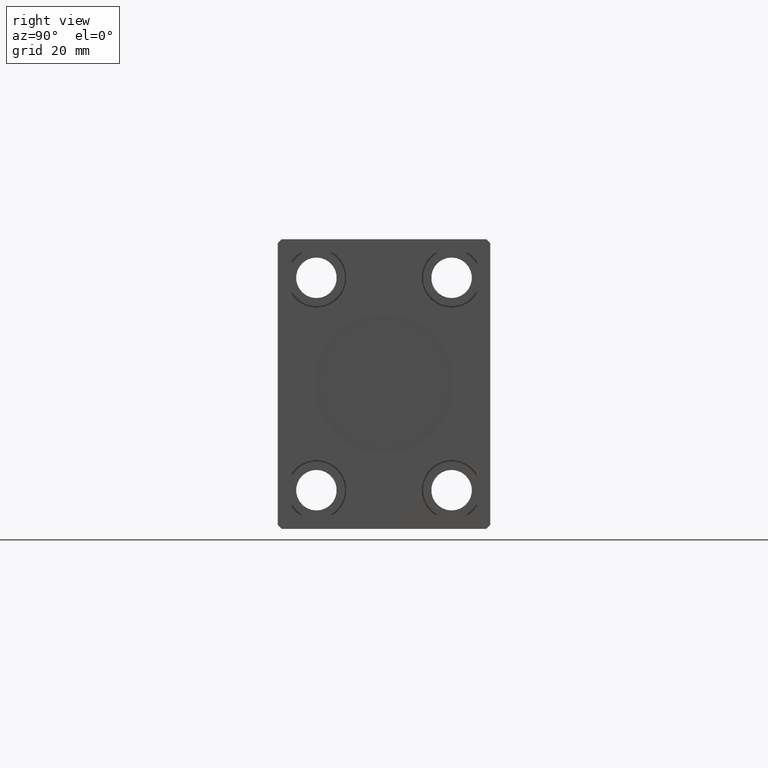
[diagram: clean part render]
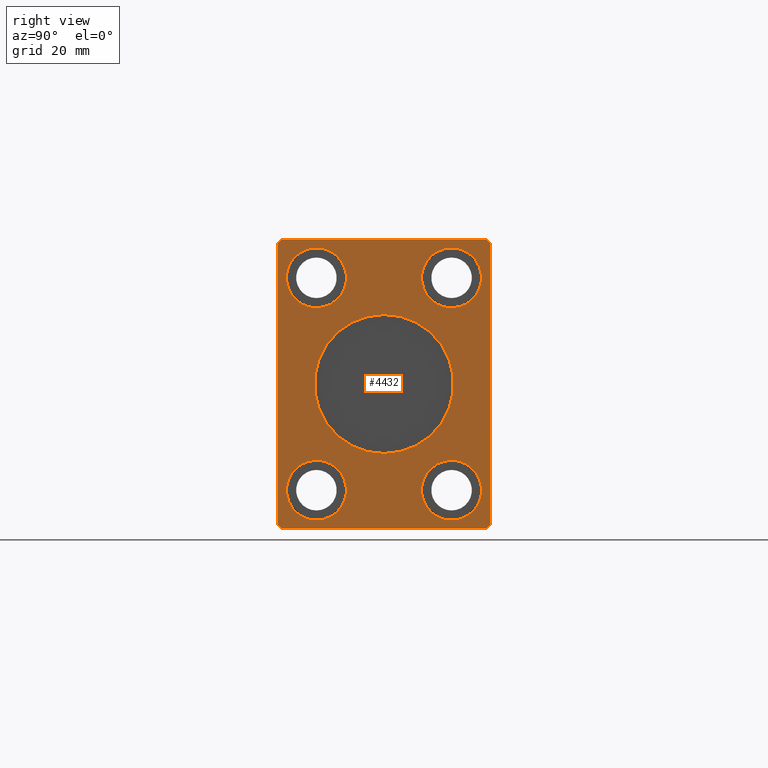
[diagram: same view with one face highlighted and labeled with its STEP entity id]
A machine part, right view. The second image highlights one B-rep face of the part: STEP entity #4432.
In plain terms, the highlighted planar face has unit normal (1, 0, 0).
Its self-contained STEP definition (entity closure, byte-faithful):
#165 = DIRECTION ( 'NONE',  ( 0.000000000000000000, -0.7071067811865474617, 0.7071067811865474617 ) ) ;
#233 = AXIS2_PLACEMENT_3D ( 'NONE', #10430, #17300, #27211 ) ;
#256 = DIRECTION ( 'NONE',  ( -1.000000000000000000, -0.000000000000000000, -0.000000000000000000 ) ) ;
#307 = CARTESIAN_POINT ( 'NONE',  ( 165.0000000000000000, 2.204364238465235428E-15, 18.00000000000000000 ) ) ;
#734 = CARTESIAN_POINT ( 'NONE',  ( 165.0000000000000000, -17.50000000000000000, -35.25000000000000000 ) ) ;
#1101 = VERTEX_POINT ( 'NONE', #26354 ) ;
#1279 = CARTESIAN_POINT ( 'NONE',  ( 165.0000000000000000, 0.000000000000000000, -18.00000000000000000 ) ) ;
#1363 = VERTEX_POINT ( 'NONE', #15965 ) ;
#1841 = CIRCLE ( 'NONE', #24543, 7.750000000000003553 ) ;
#1964 = DIRECTION ( 'NONE',  ( 0.000000000000000000, -0.7071067811865474617, -0.7071067811865474617 ) ) ;
#1989 = CIRCLE ( 'NONE', #30916, 7.750000000000003553 ) ;
#2032 = CARTESIAN_POINT ( 'NONE',  ( 165.0000000000000000, -17.50000000000000000, 27.50000000000000000 ) ) ;
#2059 = EDGE_LOOP ( 'NONE', ( #29623, #7193 ) ) ;
#2068 = VERTEX_POINT ( 'NONE', #10427 ) ;
#2236 = DIRECTION ( 'NONE',  ( -1.000000000000000000, -0.000000000000000000, -0.000000000000000000 ) ) ;
#3016 = LINE ( 'NONE', #38361, #21573 ) ;
#3104 = EDGE_CURVE ( 'NONE', #1363, #30563, #8428, .T. ) ;
#3319 = DIRECTION ( 'NONE',  ( 0.000000000000000000, 0.000000000000000000, -1.000000000000000000 ) ) ;
#3436 = VERTEX_POINT ( 'NONE', #14635 ) ;
#3870 = EDGE_CURVE ( 'NONE', #11226, #27870, #25859, .T. ) ;
#3944 = CARTESIAN_POINT ( 'NONE',  ( 165.0000000000000000, 17.50000000000000000, -19.74999999999999645 ) ) ;
#4158 = EDGE_CURVE ( 'NONE', #39440, #1363, #27674, .T. ) ;
#4242 = CARTESIAN_POINT ( 'NONE',  ( 165.0000000000000000, 17.50000000000000000, 27.50000000000000000 ) ) ;
#4432 = ADVANCED_FACE ( 'NONE', ( #40750, #34081, #4569, #14493, #27622, #11258 ), #24388, .T. ) ;
#4569 = FACE_BOUND ( 'NONE', #13051, .T. ) ;
#6294 = VERTEX_POINT ( 'NONE', #34901 ) ;
#6707 = ORIENTED_EDGE ( 'NONE', *, *, #23542, .T. ) ;
#6711 = DIRECTION ( 'NONE',  ( 1.000000000000000000, -0.000000000000000000, -0.000000000000000000 ) ) ;
#7098 = ORIENTED_EDGE ( 'NONE', *, *, #33212, .T. ) ;
#7193 = ORIENTED_EDGE ( 'NONE', *, *, #31385, .F. ) ;
#7789 = DIRECTION ( 'NONE',  ( 0.000000000000000000, 0.000000000000000000, 1.000000000000000000 ) ) ;
#7790 = CARTESIAN_POINT ( 'NONE',  ( 165.0000000000000000, -17.50000000000000000, -27.50000000000000000 ) ) ;
#8050 = EDGE_LOOP ( 'NONE', ( #36182, #27451 ) ) ;
#8257 = ORIENTED_EDGE ( 'NONE', *, *, #24020, .F. ) ;
#8428 = LINE ( 'NONE', #21556, #11390 ) ;
#8933 = CIRCLE ( 'NONE', #36352, 7.750000000000003553 ) ;
#9670 = LINE ( 'NONE', #26051, #13477 ) ;
#9985 = DIRECTION ( 'NONE',  ( 0.000000000000000000, 0.000000000000000000, -1.000000000000000000 ) ) ;
#10166 = DIRECTION ( 'NONE',  ( 0.000000000000000000, 0.000000000000000000, -1.000000000000000000 ) ) ;
#10427 = CARTESIAN_POINT ( 'NONE',  ( 165.0000000000000000, -27.50000000000000355, -36.49999999999998579 ) ) ;
#10430 = CARTESIAN_POINT ( 'NONE',  ( 165.0000000000000000, 0.000000000000000000, 0.000000000000000000 ) ) ;
#10590 = VECTOR ( 'NONE', #21793, 1000.000000000000000 ) ;
#10621 = DIRECTION ( 'NONE',  ( 0.000000000000000000, 0.000000000000000000, -1.000000000000000000 ) ) ;
#10747 = VECTOR ( 'NONE', #30701, 1000.000000000000000 ) ;
#10932 = VERTEX_POINT ( 'NONE', #1279 ) ;
#11226 = VERTEX_POINT ( 'NONE', #18670 ) ;
#11242 = CARTESIAN_POINT ( 'NONE',  ( 165.0000000000000000, 17.50000000000000000, -27.50000000000000000 ) ) ;
#11258 = FACE_BOUND ( 'NONE', #36327, .T. ) ;
#11390 = VECTOR ( 'NONE', #1964, 1000.000000000000114 ) ;
#11620 = EDGE_CURVE ( 'NONE', #27870, #11226, #22470, .T. ) ;
#11710 = CARTESIAN_POINT ( 'NONE',  ( 165.0000000000000000, 27.50000000000000355, 36.50000000000000711 ) ) ;
#12667 = EDGE_CURVE ( 'NONE', #42267, #3436, #8933, .T. ) ;
#13051 = EDGE_LOOP ( 'NONE', ( #23362, #39973 ) ) ;
#13477 = VECTOR ( 'NONE', #165, 1000.000000000000114 ) ;
#14480 = DIRECTION ( 'NONE',  ( 1.000000000000000000, -0.000000000000000000, -0.000000000000000000 ) ) ;
#14493 = FACE_OUTER_BOUND ( 'NONE', #33819, .T. ) ;
#14635 = CARTESIAN_POINT ( 'NONE',  ( 165.0000000000000000, -17.50000000000000000, -19.74999999999999645 ) ) ;
#15721 = EDGE_CURVE ( 'NONE', #35350, #10932, #40124, .T. ) ;
#15797 = VERTEX_POINT ( 'NONE', #3944 ) ;
#15965 = CARTESIAN_POINT ( 'NONE',  ( 165.0000000000000000, -26.50000000000000711, 37.50000000000000711 ) ) ;
#16280 = LINE ( 'NONE', #28792, #28015 ) ;
#16609 = EDGE_CURVE ( 'NONE', #30563, #2068, #25032, .T. ) ;
#17017 = VERTEX_POINT ( 'NONE', #33143 ) ;
#17180 = DIRECTION ( 'NONE',  ( 1.000000000000000000, -0.000000000000000000, -0.000000000000000000 ) ) ;
#17300 = DIRECTION ( 'NONE',  ( 1.000000000000000000, 0.000000000000000000, 0.000000000000000000 ) ) ;
#18121 = DIRECTION ( 'NONE',  ( -1.000000000000000000, -0.000000000000000000, -0.000000000000000000 ) ) ;
#18670 = CARTESIAN_POINT ( 'NONE',  ( 165.0000000000000000, -17.50000000000000000, 35.25000000000000000 ) ) ;
#19090 = DIRECTION ( 'NONE',  ( 0.000000000000000000, -4.752667057470704875E-17, 1.000000000000000000 ) ) ;
#20130 = ORIENTED_EDGE ( 'NONE', *, *, #3104, .T. ) ;
#20270 = LINE ( 'NONE', #26516, #35479 ) ;
#20775 = CARTESIAN_POINT ( 'NONE',  ( 165.0000000000000000, -26.50000000000000355, -37.49999999999999289 ) ) ;
#21261 = CARTESIAN_POINT ( 'NONE',  ( 165.0000000000000000, 17.50000000000000000, -35.25000000000000000 ) ) ;
#21556 = CARTESIAN_POINT ( 'NONE',  ( 165.0000000000000000, -26.50000000000000711, 37.50000000000000711 ) ) ;
#21562 = EDGE_CURVE ( 'NONE', #22170, #15797, #36031, .T. ) ;
#21573 = VECTOR ( 'NONE', #42229, 1000.000000000000114 ) ;
#21634 = EDGE_CURVE ( 'NONE', #29434, #1101, #3016, .T. ) ;
#21793 = DIRECTION ( 'NONE',  ( 0.000000000000000000, 4.752667057470705491E-17, -1.000000000000000000 ) ) ;
#21802 = ORIENTED_EDGE ( 'NONE', *, *, #4158, .T. ) ;
#21874 = ORIENTED_EDGE ( 'NONE', *, *, #22104, .F. ) ;
#22104 = EDGE_CURVE ( 'NONE', #17017, #6294, #30540, .T. ) ;
#22170 = VERTEX_POINT ( 'NONE', #21261 ) ;
#22289 = AXIS2_PLACEMENT_3D ( 'NONE', #4242, #17180, #24720 ) ;
#22470 = CIRCLE ( 'NONE', #23854, 7.750000000000003553 ) ;
#22864 = CARTESIAN_POINT ( 'NONE',  ( 165.0000000000000000, -17.50000000000000000, -27.50000000000000000 ) ) ;
#23145 = ORIENTED_EDGE ( 'NONE', *, *, #28730, .T. ) ;
#23362 = ORIENTED_EDGE ( 'NONE', *, *, #21562, .T. ) ;
#23542 = EDGE_CURVE ( 'NONE', #32351, #29434, #42411, .T. ) ;
#23709 = DIRECTION ( 'NONE',  ( 0.000000000000000000, 0.7071067811865451302, -0.7071067811865500152 ) ) ;
#23854 = AXIS2_PLACEMENT_3D ( 'NONE', #2032, #2236, #38643 ) ;
#24020 = EDGE_CURVE ( 'NONE', #6294, #17017, #24385, .T. ) ;
#24247 = VERTEX_POINT ( 'NONE', #11710 ) ;
#24385 = CIRCLE ( 'NONE', #28536, 7.750000000000003553 ) ;
#24388 = PLANE ( 'NONE',  #34806 ) ;
#24543 = AXIS2_PLACEMENT_3D ( 'NONE', #7790, #14480, #27610 ) ;
#24720 = DIRECTION ( 'NONE',  ( 0.000000000000000000, 0.000000000000000000, -1.000000000000000000 ) ) ;
#24948 = ORIENTED_EDGE ( 'NONE', *, *, #21634, .T. ) ;
#25032 = LINE ( 'NONE', #38165, #10590 ) ;
#25859 = CIRCLE ( 'NONE', #41690, 7.750000000000003553 ) ;
#26051 = CARTESIAN_POINT ( 'NONE',  ( 165.0000000000000000, 27.50000000000000355, 36.50000000000000711 ) ) ;
#26354 = CARTESIAN_POINT ( 'NONE',  ( 165.0000000000000000, 27.50000000000000711, -36.49999999999999289 ) ) ;
#26516 = CARTESIAN_POINT ( 'NONE',  ( 165.0000000000000000, -27.50000000000000355, -36.49999999999998579 ) ) ;
#26891 = DIRECTION ( 'NONE',  ( 0.000000000000000000, 1.000000000000000000, 0.000000000000000000 ) ) ;
#26897 = EDGE_CURVE ( 'NONE', #10932, #35350, #29274, .T. ) ;
#27211 = DIRECTION ( 'NONE',  ( 0.000000000000000000, 0.000000000000000000, -1.000000000000000000 ) ) ;
#27451 = ORIENTED_EDGE ( 'NONE', *, *, #15721, .F. ) ;
#27610 = DIRECTION ( 'NONE',  ( 0.000000000000000000, 0.000000000000000000, -1.000000000000000000 ) ) ;
#27622 = FACE_BOUND ( 'NONE', #2059, .T. ) ;
#27674 = LINE ( 'NONE', #41232, #10747 ) ;
#27870 = VERTEX_POINT ( 'NONE', #38158 ) ;
#28015 = VECTOR ( 'NONE', #19090, 1000.000000000000000 ) ;
#28212 = EDGE_CURVE ( 'NONE', #24247, #39440, #9670, .T. ) ;
#28536 = AXIS2_PLACEMENT_3D ( 'NONE', #32844, #36060, #3319 ) ;
#28730 = EDGE_CURVE ( 'NONE', #2068, #32351, #20270, .T. ) ;
#28792 = CARTESIAN_POINT ( 'NONE',  ( 165.0000000000000000, 27.50000000000000711, -36.49999999999999289 ) ) ;
#28894 = ORIENTED_EDGE ( 'NONE', *, *, #16609, .T. ) ;
#29185 = VECTOR ( 'NONE', #26891, 1000.000000000000000 ) ;
#29274 = CIRCLE ( 'NONE', #36155, 18.00000000000000000 ) ;
#29434 = VERTEX_POINT ( 'NONE', #31938 ) ;
#29582 = DIRECTION ( 'NONE',  ( 0.000000000000000000, 0.000000000000000000, 1.000000000000000000 ) ) ;
#29623 = ORIENTED_EDGE ( 'NONE', *, *, #12667, .F. ) ;
#29785 = CARTESIAN_POINT ( 'NONE',  ( 165.0000000000000000, 17.50000000000000000, -27.50000000000000000 ) ) ;
#30161 = ORIENTED_EDGE ( 'NONE', *, *, #3870, .T. ) ;
#30540 = CIRCLE ( 'NONE', #22289, 7.750000000000003553 ) ;
#30563 = VERTEX_POINT ( 'NONE', #30843 ) ;
#30701 = DIRECTION ( 'NONE',  ( 0.000000000000000000, -1.000000000000000000, 0.000000000000000000 ) ) ;
#30843 = CARTESIAN_POINT ( 'NONE',  ( 165.0000000000000000, -27.50000000000000711, 36.50000000000000711 ) ) ;
#30916 = AXIS2_PLACEMENT_3D ( 'NONE', #11242, #18121, #7789 ) ;
#30969 = CARTESIAN_POINT ( 'NONE',  ( 165.0000000000000000, -17.50000000000000000, 27.50000000000000000 ) ) ;
#31385 = EDGE_CURVE ( 'NONE', #3436, #42267, #1841, .T. ) ;
#31938 = CARTESIAN_POINT ( 'NONE',  ( 165.0000000000000000, 26.50000000000000711, -37.49999999999999289 ) ) ;
#32351 = VERTEX_POINT ( 'NONE', #20775 ) ;
#32539 = ORIENTED_EDGE ( 'NONE', *, *, #28212, .T. ) ;
#32844 = CARTESIAN_POINT ( 'NONE',  ( 165.0000000000000000, 17.50000000000000000, 27.50000000000000000 ) ) ;
#33143 = CARTESIAN_POINT ( 'NONE',  ( 165.0000000000000000, 17.50000000000000000, 35.25000000000000000 ) ) ;
#33212 = EDGE_CURVE ( 'NONE', #1101, #24247, #16280, .T. ) ;
#33666 = CARTESIAN_POINT ( 'NONE',  ( 165.0000000000000000, 0.000000000000000000, 0.000000000000000000 ) ) ;
#33819 = EDGE_LOOP ( 'NONE', ( #32539, #21802, #20130, #28894, #23145, #6707, #24948, #7098 ) ) ;
#33967 = DIRECTION ( 'NONE',  ( 0.000000000000000000, 0.000000000000000000, 1.000000000000000000 ) ) ;
#34081 = FACE_BOUND ( 'NONE', #41443, .T. ) ;
#34806 = AXIS2_PLACEMENT_3D ( 'NONE', #37526, #40110, #10621 ) ;
#34901 = CARTESIAN_POINT ( 'NONE',  ( 165.0000000000000000, 17.50000000000000000, 19.74999999999999645 ) ) ;
#35350 = VERTEX_POINT ( 'NONE', #307 ) ;
#35402 = CARTESIAN_POINT ( 'NONE',  ( 165.0000000000000000, 26.50000000000000355, 37.50000000000000711 ) ) ;
#35479 = VECTOR ( 'NONE', #23709, 1000.000000000000114 ) ;
#36031 = CIRCLE ( 'NONE', #36713, 7.750000000000003553 ) ;
#36060 = DIRECTION ( 'NONE',  ( 1.000000000000000000, -0.000000000000000000, -0.000000000000000000 ) ) ;
#36155 = AXIS2_PLACEMENT_3D ( 'NONE', #33666, #36671, #9985 ) ;
#36158 = CARTESIAN_POINT ( 'NONE',  ( 165.0000000000000000, -26.50000000000000355, -37.49999999999999289 ) ) ;
#36182 = ORIENTED_EDGE ( 'NONE', *, *, #26897, .F. ) ;
#36327 = EDGE_LOOP ( 'NONE', ( #8257, #21874 ) ) ;
#36352 = AXIS2_PLACEMENT_3D ( 'NONE', #22864, #6711, #10166 ) ;
#36671 = DIRECTION ( 'NONE',  ( 1.000000000000000000, 0.000000000000000000, 0.000000000000000000 ) ) ;
#36713 = AXIS2_PLACEMENT_3D ( 'NONE', #29785, #256, #29582 ) ;
#37526 = CARTESIAN_POINT ( 'NONE',  ( 165.0000000000000000, 0.000000000000000000, 0.000000000000000000 ) ) ;
#38158 = CARTESIAN_POINT ( 'NONE',  ( 165.0000000000000000, -17.50000000000000000, 19.74999999999999645 ) ) ;
#38165 = CARTESIAN_POINT ( 'NONE',  ( 165.0000000000000000, -27.50000000000000711, 36.50000000000000711 ) ) ;
#38361 = CARTESIAN_POINT ( 'NONE',  ( 165.0000000000000000, 26.50000000000000711, -37.49999999999999289 ) ) ;
#38643 = DIRECTION ( 'NONE',  ( 0.000000000000000000, 0.000000000000000000, 1.000000000000000000 ) ) ;
#39440 = VERTEX_POINT ( 'NONE', #35402 ) ;
#39973 = ORIENTED_EDGE ( 'NONE', *, *, #42594, .T. ) ;
#40110 = DIRECTION ( 'NONE',  ( 1.000000000000000000, 0.000000000000000000, 0.000000000000000000 ) ) ;
#40124 = CIRCLE ( 'NONE', #233, 18.00000000000000000 ) ;
#40750 = FACE_BOUND ( 'NONE', #8050, .T. ) ;
#40852 = DIRECTION ( 'NONE',  ( -1.000000000000000000, -0.000000000000000000, -0.000000000000000000 ) ) ;
#41113 = ORIENTED_EDGE ( 'NONE', *, *, #11620, .T. ) ;
#41232 = CARTESIAN_POINT ( 'NONE',  ( 165.0000000000000000, 26.50000000000000355, 37.50000000000000711 ) ) ;
#41443 = EDGE_LOOP ( 'NONE', ( #41113, #30161 ) ) ;
#41690 = AXIS2_PLACEMENT_3D ( 'NONE', #30969, #40852, #33967 ) ;
#42229 = DIRECTION ( 'NONE',  ( 0.000000000000000000, 0.7071067811865474617, 0.7071067811865474617 ) ) ;
#42267 = VERTEX_POINT ( 'NONE', #734 ) ;
#42411 = LINE ( 'NONE', #36158, #29185 ) ;
#42594 = EDGE_CURVE ( 'NONE', #15797, #22170, #1989, .T. ) ;